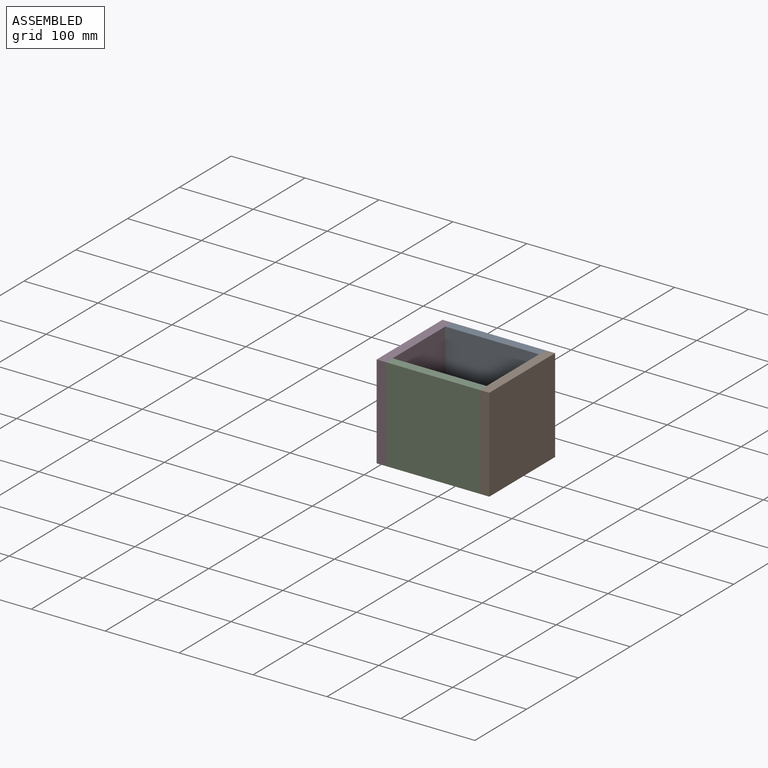
[diagram: assembled view]
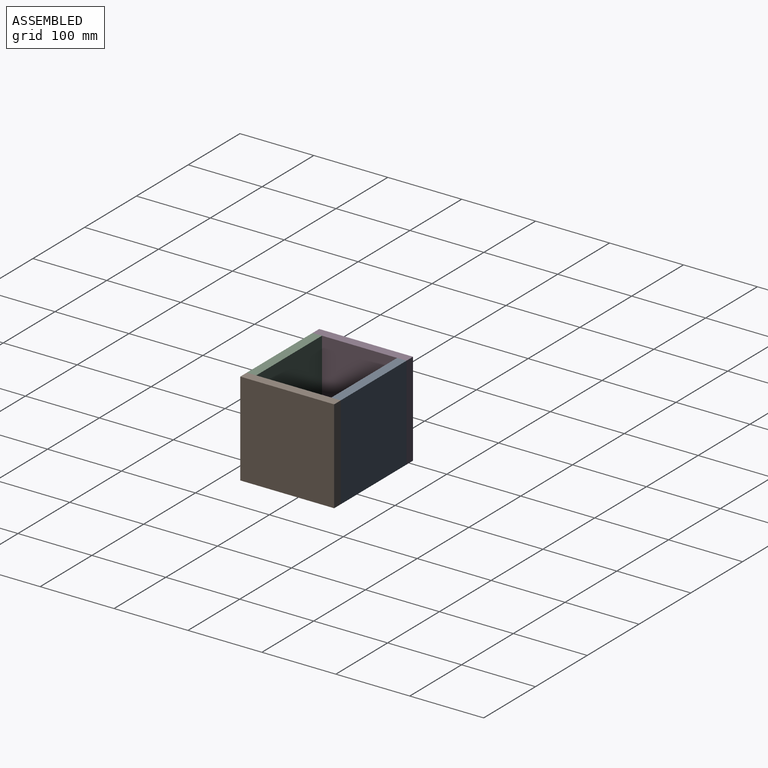
[diagram: assembled view, second angle]
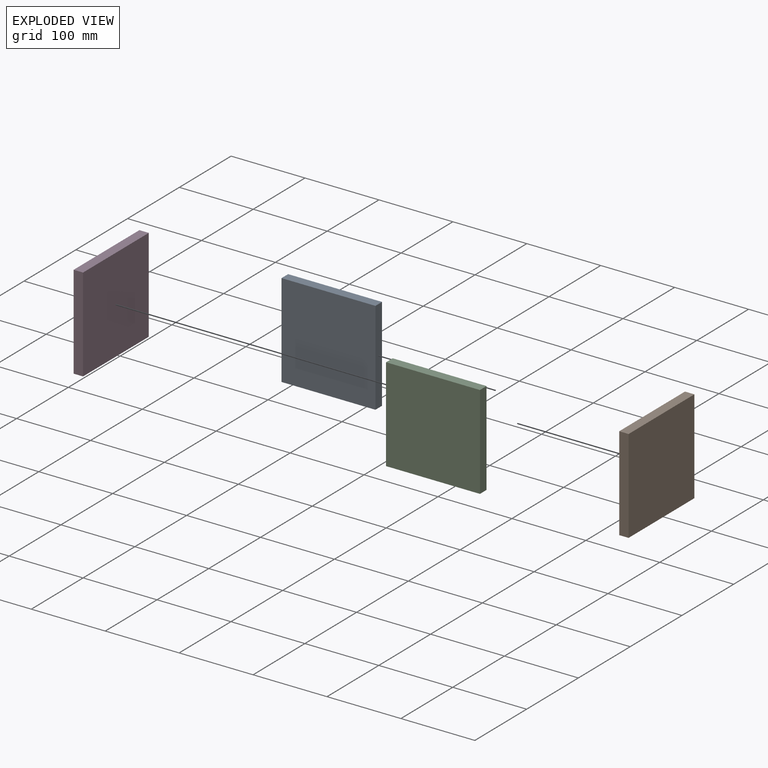
[diagram: exploded view]
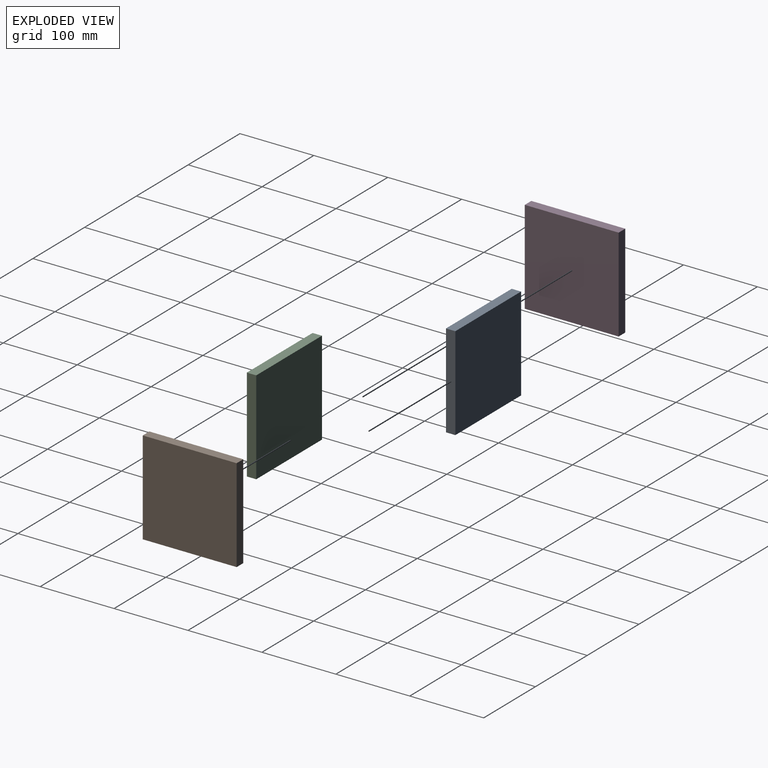
[diagram: exploded view, second angle]
ASSEMBLY  parts=4 mates=3
PART A: 6 faces, bbox 127x12.7x127 mm
  f0: plane 127x12.7mm, normal (-1,0,0), area 1612.9mm2, adj f1,f3,f4,f5
  f1: plane 127x12.7mm, normal (0,0,-1), area 1612.9mm2, adj f0,f2,f4,f5
  f2: plane 127x12.7mm, normal (1,0,0), area 1612.9mm2, adj f1,f3,f4,f5
  f3: plane 127x12.7mm, normal (0,0,1), area 1612.9mm2, adj f0,f2,f4,f5
  f4: plane 127x127mm, normal (0,-1,0), area 16129mm2, adj f0,f1,f2,f3
  f5: plane 127x127mm, normal (0,1,0), area 16129mm2, adj f0,f1,f2,f3
PART B: same geometry as A
PART C: same geometry as A
PART D: same geometry as A
PLACE A t=(111.3,153.42,76.82)mm
PLACE B rot(axis=(0,0,-1),90deg) t=(251,153.42,76.82)mm
PLACE C rot(axis=(0,0,1),0deg) t=(111.3,39.12,76.82)mm
PLACE D rot(axis=(0,0,-1),90deg) t=(111.3,153.42,76.82)mm
MATE fastened D.f5 <-> A.f0  axis (1,0,0) through (111.3,153.42,203.82)mm
MATE fastened B.f4 <-> A.f2  axis (-1,0,0) through (238.3,153.42,203.82)mm
MATE fastened C.f0 <-> D.f5  axis (-1,0,0) through (111.3,26.42,76.82)mm
